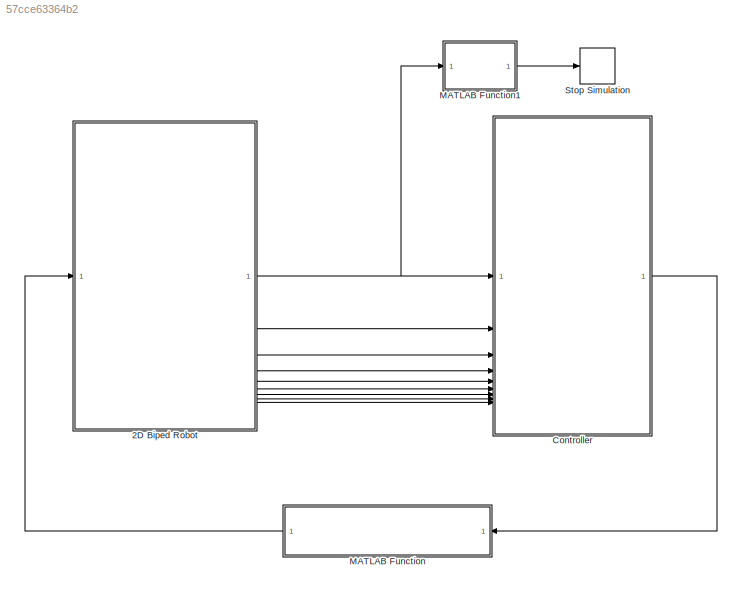
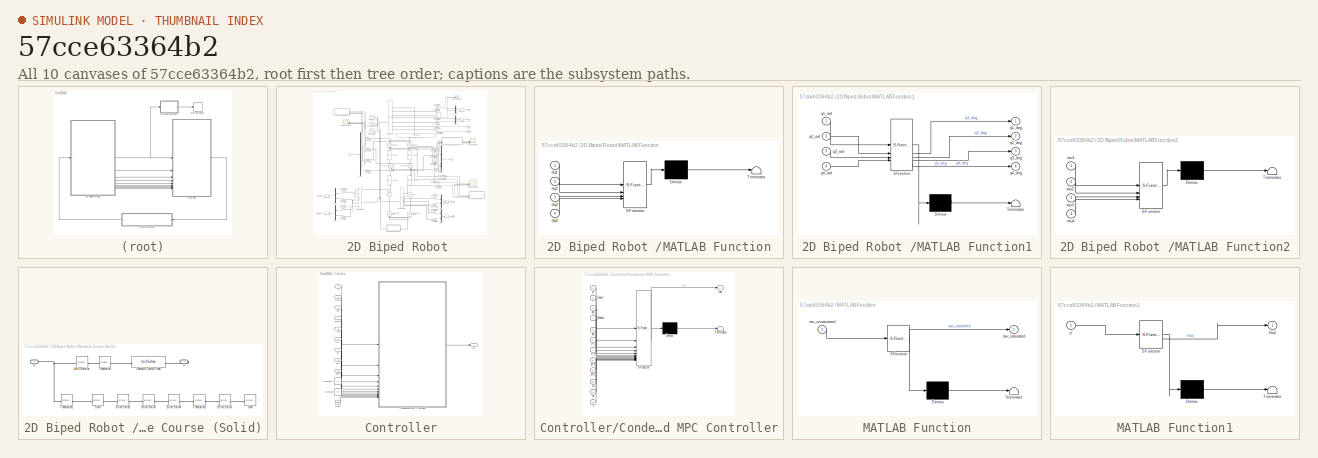
[diagram: thumbnail index - all 10 canvases of the model, root first then tree order]
MODEL slx_57cce63364b2
KIND model
CONFIG AbsTol = auto
CONFIG EnableMultiTasking = off
CONFIG FixedStep = 0.0005
CONFIG InitFcn = global params;\n\n% Mass and geometry\nparams.m = 0.25;\nparams.l = 0.22;\nparams.mb = 8;\nparams.a = 0.25;\nparams.b = 0.15;\nparams.g = [0; 9.81; 0];\n\n% Moment of inerita\nIl_zz = params.m * params.l^2 / 12;\nIb_xx = params.mb * params.a^2 / 12;\nIb_yy = params.mb * params.b^2 / 12;\nIb_zz = params.mb * (params.a^2 + params.b^2) / 12;\nparams.Ib = diag([Ib_xx Ib_yy Ib_zz]);\n\n% Spatial contact force parameter...<+337ch>
CONFIG MaxStep = 1e-3
CONFIG MinStep = auto
CONFIG RelTol = 1e-2
CONFIG SampleTimeConstraint = Unconstrained
CONFIG SolverName = daessc
CONFIG StartTime = 0.0
CONFIG StopTime = 10
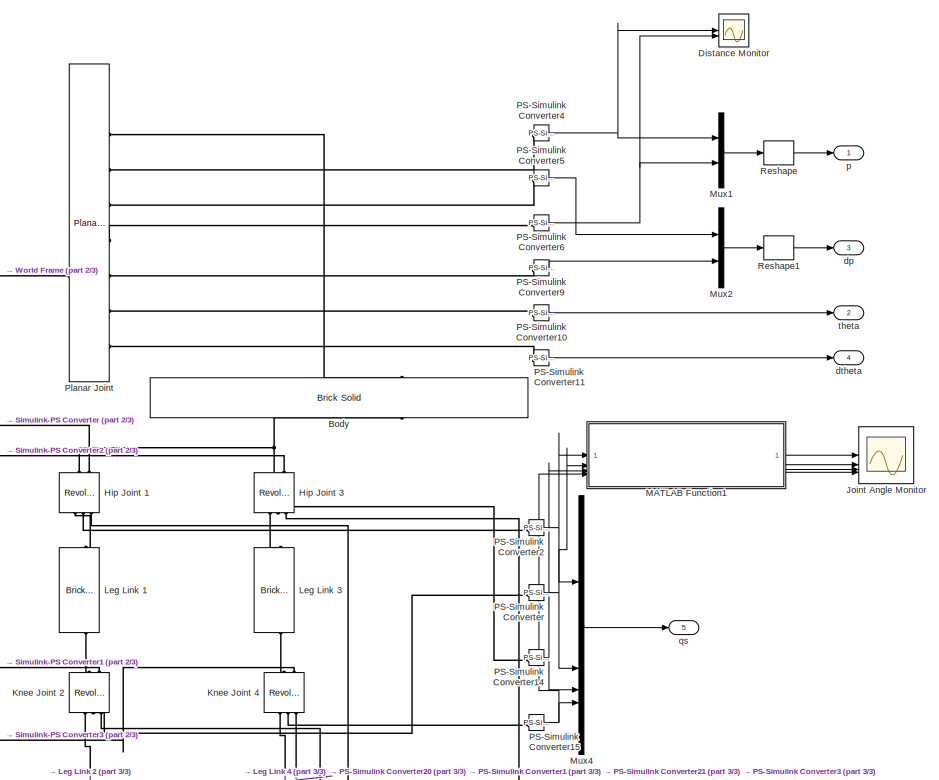
[diagram: 2D Biped Robot  - part 1/3, top right region]
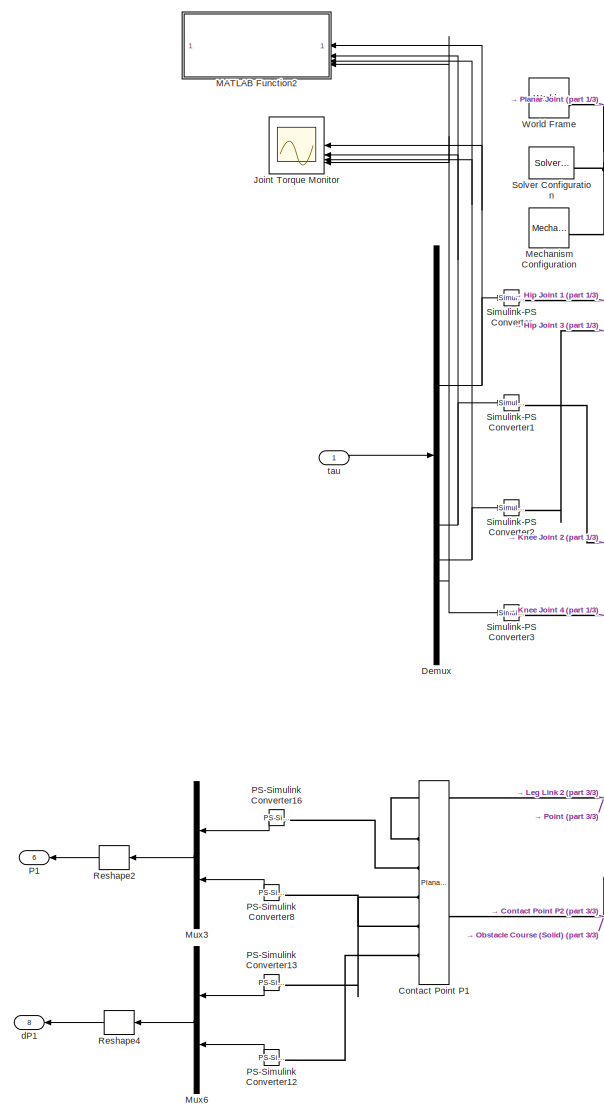
[diagram: 2D Biped Robot  - part 2/3, left side, full height]
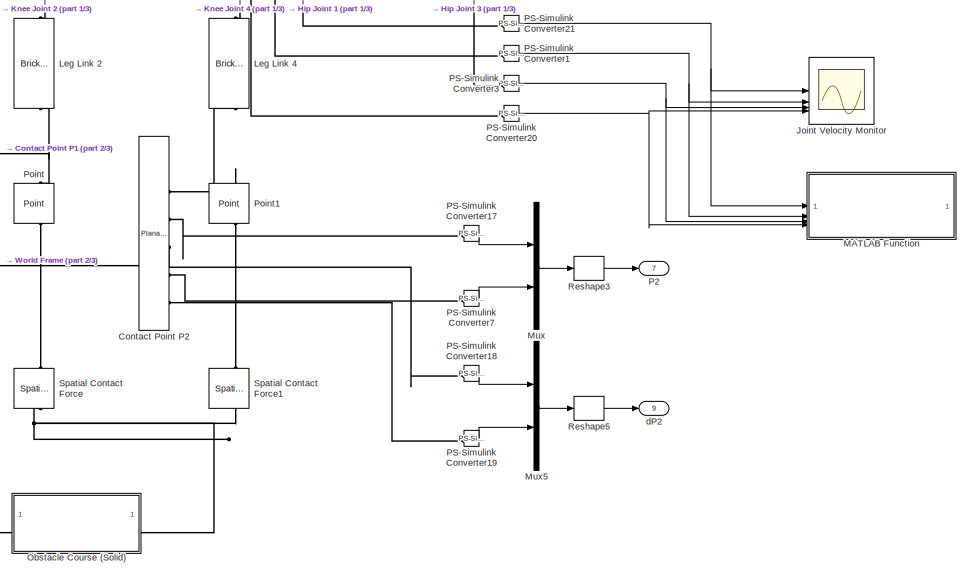
[diagram: 2D Biped Robot  - part 3/3, bottom right region]
BLOCK [SubSystem] 2D Biped Robot 
BLOCK [Reference] 2D Biped Robot /Body  REF=sm_lib/Body Elements/Brick Solid
  NameLocation = right
  SourceBlock = sm_lib/Body Elements/Brick Solid
  SourceType = Brick Solid
BLOCK [Reference] 2D Biped Robot /Contact Point P1  REF=sm_lib/Joints/Planar Joint
  NameLocation = top
  SourceBlock = sm_lib/Joints/Planar Joint
  SourceType = Planar Joint
BLOCK [Reference] 2D Biped Robot /Contact Point P2  REF=sm_lib/Joints/Planar Joint
  SourceBlock = sm_lib/Joints/Planar Joint
  SourceType = Planar Joint
BLOCK [Demux] 2D Biped Robot /Demux
BLOCK [Scope] 2D Biped Robot /Distance Monitor
  Floating = off
  NumInputPorts = 2
  ScopeSpecificationString = Simulink.scopes.TimeScopeBlockCfg('CurrentConfiguration', extmgr.ConfigurationSet(extmgr.Configuration('Core','General UI',true),extmgr.Configuration('Core','Source UI',true),extmgr.Configuration('Sources','WiredSimulink',true,'DataLoggingVariableName','ScopeData1'),extmgr.Configuration('Visuals','Time Domain',true,'SerializedDisplays',{struct('MinYLimReal','0','MaxYLimReal','8','YLabelReal','x (m...<+2418ch>
BLOCK [Reference] 2D Biped Robot /Hip Joint 1  REF=sm_lib/Joints/Revolute Joint
  NameLocation = left
  SourceBlock = sm_lib/Joints/Revolute Joint
  SourceType = Revolute Joint
BLOCK [Reference] 2D Biped Robot /Hip Joint 3  REF=sm_lib/Joints/Revolute Joint
  NameLocation = left
  SourceBlock = sm_lib/Joints/Revolute Joint
  SourceType = Revolute Joint
BLOCK [Scope] 2D Biped Robot /Joint Angle Monitor
  Floating = off
  NumInputPorts = 4
  ScopeSpecificationString = Simulink.scopes.TimeScopeBlockCfg('CurrentConfiguration', extmgr.ConfigurationSet(extmgr.Configuration('Core','General UI',true),extmgr.Configuration('Core','Source UI',true),extmgr.Configuration('Sources','WiredSimulink',true,'DataLoggingVariableName','ScopeData2'),extmgr.Configuration('Visuals','Time Domain',true,'SerializedDisplays',{struct('MinYLimReal','-120','MaxYLimReal','30','YLabelReal','...<+4352ch>
BLOCK [Scope] 2D Biped Robot /Joint Torque Monitor
  Floating = off
  NameLocation = top
  NumInputPorts = 4
  ScopeSpecificationString = Simulink.scopes.TimeScopeBlockCfg('CurrentConfiguration', extmgr.ConfigurationSet(extmgr.Configuration('Core','General UI',true),extmgr.Configuration('Core','Source UI',true),extmgr.Configuration('Sources','WiredSimulink',true,'DataLoggingVariableName','ScopeData4'),extmgr.Configuration('Visuals','Time Domain',true,'SerializedDisplays',{struct('MinYLimReal','-30','MaxYLimReal','30','YLabelReal','T...<+4228ch>
BLOCK [Scope] 2D Biped Robot /Joint Velocity Monitor
  Floating = off
  NumInputPorts = 4
  ScopeSpecificationString = Simulink.scopes.TimeScopeBlockCfg('CurrentConfiguration', extmgr.ConfigurationSet(extmgr.Configuration('Core','General UI',true),extmgr.Configuration('Core','Source UI',true),extmgr.Configuration('Sources','WiredSimulink',true,'DataLoggingVariableName','ScopeData3'),extmgr.Configuration('Visuals','Time Domain',true,'SerializedDisplays',{struct('MinYLimReal','-30','MaxYLimReal','30','YLabelReal','J...<+4213ch>
BLOCK [Reference] 2D Biped Robot /Knee Joint 2  REF=sm_lib/Joints/Revolute Joint
  NameLocation = left
  SourceBlock = sm_lib/Joints/Revolute Joint
  SourceType = Revolute Joint
BLOCK [Reference] 2D Biped Robot /Knee Joint 4  REF=sm_lib/Joints/Revolute Joint
  NameLocation = left
  SourceBlock = sm_lib/Joints/Revolute Joint
  SourceType = Revolute Joint
BLOCK [Reference] 2D Biped Robot /Leg Link 1  REF=sm_lib/Body Elements/Brick Solid
  NameLocation = left
  SourceBlock = sm_lib/Body Elements/Brick Solid
  SourceType = Brick Solid
BLOCK [Reference] 2D Biped Robot /Leg Link 2  REF=sm_lib/Body Elements/Brick Solid
  NameLocation = left
  SourceBlock = sm_lib/Body Elements/Brick Solid
  SourceType = Brick Solid
BLOCK [Reference] 2D Biped Robot /Leg Link 3  REF=sm_lib/Body Elements/Brick Solid
  NameLocation = left
  SourceBlock = sm_lib/Body Elements/Brick Solid
  SourceType = Brick Solid
BLOCK [Reference] 2D Biped Robot /Leg Link 4  REF=sm_lib/Body Elements/Brick Solid
  NameLocation = left
  SourceBlock = sm_lib/Body Elements/Brick Solid
  SourceType = Brick Solid
BLOCK [SubSystem] 2D Biped Robot /MATLAB Function
  ErrorFcn = Stateflow.Translate.translate
  PermitHierarchicalResolution = ExplicitOnly
  SFBlockType = MATLAB Function
  TreatAsAtomicUnit = on
BLOCK [Demux] 2D Biped Robot /MATLAB Function/ Demux 
  Outputs = 1
BLOCK [S-Function] 2D Biped Robot /MATLAB Function/ SFunction 
  EnableBusSupport = on
  FunctionName = sf_sfun
  PortCounts = [4 1]
  SFcnIsStateOwnerBlock = off
  SFunctionDeploymentMode = off
  Tag = Stateflow S-Function 6
BLOCK [Terminator] 2D Biped Robot /MATLAB Function/ Terminator 
BLOCK [Inport] 2D Biped Robot /MATLAB Function/dq1
BLOCK [Inport] 2D Biped Robot /MATLAB Function/dq2
  Port = 2
BLOCK [Inport] 2D Biped Robot /MATLAB Function/dq3
  Port = 3
BLOCK [Inport] 2D Biped Robot /MATLAB Function/dq4
  Port = 4
BLOCK [SubSystem] 2D Biped Robot /MATLAB Function1
  ErrorFcn = Stateflow.Translate.translate
  PermitHierarchicalResolution = ExplicitOnly
  SFBlockType = MATLAB Function
  TreatAsAtomicUnit = on
BLOCK [Demux] 2D Biped Robot /MATLAB Function1/ Demux 
  Outputs = 1
BLOCK [S-Function] 2D Biped Robot /MATLAB Function1/ SFunction 
  EnableBusSupport = on
  FunctionName = sf_sfun
  PortCounts = [4 5]
  SFcnIsStateOwnerBlock = off
  SFunctionDeploymentMode = off
  Tag = Stateflow S-Function 5
BLOCK [Terminator] 2D Biped Robot /MATLAB Function1/ Terminator 
BLOCK [Outport] 2D Biped Robot /MATLAB Function1/q1_deg
BLOCK [Inport] 2D Biped Robot /MATLAB Function1/q1_rad
BLOCK [Outport] 2D Biped Robot /MATLAB Function1/q2_deg
  Port = 2
BLOCK [Inport] 2D Biped Robot /MATLAB Function1/q2_rad
  Port = 2
BLOCK [Outport] 2D Biped Robot /MATLAB Function1/q3_deg
  Port = 3
BLOCK [Inport] 2D Biped Robot /MATLAB Function1/q3_rad
  Port = 3
BLOCK [Outport] 2D Biped Robot /MATLAB Function1/q4_deg
  Port = 4
BLOCK [Inport] 2D Biped Robot /MATLAB Function1/q4_rad
  Port = 4
BLOCK [SubSystem] 2D Biped Robot /MATLAB Function2
  ErrorFcn = Stateflow.Translate.translate
  NameLocation = top
  PermitHierarchicalResolution = ExplicitOnly
  SFBlockType = MATLAB Function
  TreatAsAtomicUnit = on
BLOCK [Demux] 2D Biped Robot /MATLAB Function2/ Demux 
  Outputs = 1
BLOCK [S-Function] 2D Biped Robot /MATLAB Function2/ SFunction 
  EnableBusSupport = on
  FunctionName = sf_sfun
  PortCounts = [4 1]
  SFcnIsStateOwnerBlock = off
  SFunctionDeploymentMode = off
  Tag = Stateflow S-Function 7
BLOCK [Terminator] 2D Biped Robot /MATLAB Function2/ Terminator 
BLOCK [Inport] 2D Biped Robot /MATLAB Function2/tau1
BLOCK [Inport] 2D Biped Robot /MATLAB Function2/tau2
  Port = 2
BLOCK [Inport] 2D Biped Robot /MATLAB Function2/tau3
  Port = 3
BLOCK [Inport] 2D Biped Robot /MATLAB Function2/tau4
  Port = 4
BLOCK [Reference] 2D Biped Robot /Mechanism Configuration  REF=sm_lib/Utilities/Mechanism
Configuration
  SourceBlock = sm_lib/Utilities/Mechanism\nConfiguration
  SourceType = Mechanism\nConfiguration
BLOCK [Mux] 2D Biped Robot /Mux
  DisplayOption = bar
  Inputs = 2
BLOCK [Mux] 2D Biped Robot /Mux1
  DisplayOption = bar
  Inputs = 2
BLOCK [Mux] 2D Biped Robot /Mux2
  DisplayOption = bar
  Inputs = 2
BLOCK [Mux] 2D Biped Robot /Mux3
  DisplayOption = bar
  Inputs = 2
  NameLocation = top
BLOCK [Mux] 2D Biped Robot /Mux4
  DisplayOption = bar
BLOCK [Mux] 2D Biped Robot /Mux5
  DisplayOption = bar
  Inputs = 2
BLOCK [Mux] 2D Biped Robot /Mux6
  DisplayOption = bar
  Inputs = 2
  NameLocation = top
BLOCK [SubSystem] 2D Biped Robot /Obstacle Course (Solid)
BLOCK [Reference] 2D Biped Robot /Obstacle Course (Solid)/Axis Rotation  REF=sm_lib/Frames and
Transforms/Rigid
Transform
  SourceBlock = sm_lib/Frames and\nTransforms/Rigid\nTransform
  SourceType = Rigid\nTransform
BLOCK [PMIOPort] 2D Biped Robot /Obstacle Course (Solid)/B
  Side = Left
BLOCK [Reference] 2D Biped Robot /Obstacle Course (Solid)/Brick Solid2  REF=sm_lib/Body Elements/Brick Solid
  SourceBlock = sm_lib/Body Elements/Brick Solid
  SourceType = Brick Solid
BLOCK [Reference] 2D Biped Robot /Obstacle Course (Solid)/Brick Solid3  REF=sm_lib/Body Elements/Brick Solid
  SourceBlock = sm_lib/Body Elements/Brick Solid
  SourceType = Brick Solid
BLOCK [Reference] 2D Biped Robot /Obstacle Course (Solid)/Brick Solid4  REF=sm_lib/Body Elements/Brick Solid
  SourceBlock = sm_lib/Body Elements/Brick Solid
  SourceType = Brick Solid
BLOCK [Reference] 2D Biped Robot /Obstacle Course (Solid)/Brick Solid5  REF=sm_lib/Body Elements/Brick Solid
  SourceBlock = sm_lib/Body Elements/Brick Solid
  SourceType = Brick Solid
BLOCK [PMIOPort] 2D Biped Robot /Obstacle Course (Solid)/G
  NameLocation = top
  Port = 2
  Side = Right
BLOCK [Reference] 2D Biped Robot /Obstacle Course (Solid)/Goal  REF=sm_lib/Body Elements/Brick Solid
  SourceBlock = sm_lib/Body Elements/Brick Solid
  SourceType = Brick Solid
BLOCK [Reference] 2D Biped Robot /Obstacle Course (Solid)/Obstacle Course Plane  REF=sm_lib/Curves and Surfaces/Grid Surface
  SourceBlock = sm_lib/Curves and Surfaces/Grid Surface
  SourceType = Grid Surface
BLOCK [Reference] 2D Biped Robot /Obstacle Course (Solid)/Start  REF=sm_lib/Body Elements/Brick Solid
  SourceBlock = sm_lib/Body Elements/Brick Solid
  SourceType = Brick Solid
BLOCK [Reference] 2D Biped Robot /Obstacle Course (Solid)/Translation  REF=sm_lib/Frames and
Transforms/Rigid
Transform
  SourceBlock = sm_lib/Frames and\nTransforms/Rigid\nTransform
  SourceType = Rigid\nTransform
BLOCK [Reference] 2D Biped Robot /Obstacle Course (Solid)/Translation1  REF=sm_lib/Frames and
Transforms/Rigid
Transform
  SourceBlock = sm_lib/Frames and\nTransforms/Rigid\nTransform
  SourceType = Rigid\nTransform
BLOCK [Reference] 2D Biped Robot /Obstacle Course (Solid)/Translation2  REF=sm_lib/Frames and
Transforms/Rigid
Transform
  SourceBlock = sm_lib/Frames and\nTransforms/Rigid\nTransform
  SourceType = Rigid\nTransform
BLOCK [Outport] 2D Biped Robot /P1
  NameLocation = top
  Port = 6
BLOCK [Outport] 2D Biped Robot /P2
  Port = 7
BLOCK [Reference] 2D Biped Robot /PS-Simulink Converter  REF=nesl_utility/PS-Simulink
Converter
  SourceBlock = nesl_utility/PS-Simulink\nConverter
  SourceType = PS-Simulink\nConverter
BLOCK [Reference] 2D Biped Robot /PS-Simulink Converter1  REF=nesl_utility/PS-Simulink
Converter
  SourceBlock = nesl_utility/PS-Simulink\nConverter
  SourceType = PS-Simulink\nConverter
BLOCK [Reference] 2D Biped Robot /PS-Simulink Converter10  REF=nesl_utility/PS-Simulink
Converter
  SourceBlock = nesl_utility/PS-Simulink\nConverter
  SourceType = PS-Simulink\nConverter
BLOCK [Reference] 2D Biped Robot /PS-Simulink Converter11  REF=nesl_utility/PS-Simulink
Converter
  SourceBlock = nesl_utility/PS-Simulink\nConverter
  SourceType = PS-Simulink\nConverter
BLOCK [Reference] 2D Biped Robot /PS-Simulink Converter12  REF=nesl_utility/PS-Simulink
Converter
  NameLocation = top
  SourceBlock = nesl_utility/PS-Simulink\nConverter
  SourceType = PS-Simulink\nConverter
BLOCK [Reference] 2D Biped Robot /PS-Simulink Converter13  REF=nesl_utility/PS-Simulink
Converter
  NameLocation = top
  SourceBlock = nesl_utility/PS-Simulink\nConverter
  SourceType = PS-Simulink\nConverter
BLOCK [Reference] 2D Biped Robot /PS-Simulink Converter14  REF=nesl_utility/PS-Simulink
Converter
  SourceBlock = nesl_utility/PS-Simulink\nConverter
  SourceType = PS-Simulink\nConverter
BLOCK [Reference] 2D Biped Robot /PS-Simulink Converter15  REF=nesl_utility/PS-Simulink
Converter
  SourceBlock = nesl_utility/PS-Simulink\nConverter
  SourceType = PS-Simulink\nConverter
BLOCK [Reference] 2D Biped Robot /PS-Simulink Converter16  REF=nesl_utility/PS-Simulink
Converter
  NameLocation = top
  SourceBlock = nesl_utility/PS-Simulink\nConverter
  SourceType = PS-Simulink\nConverter
BLOCK [Reference] 2D Biped Robot /PS-Simulink Converter17  REF=nesl_utility/PS-Simulink
Converter
  SourceBlock = nesl_utility/PS-Simulink\nConverter
  SourceType = PS-Simulink\nConverter
BLOCK [Reference] 2D Biped Robot /PS-Simulink Converter18  REF=nesl_utility/PS-Simulink
Converter
  SourceBlock = nesl_utility/PS-Simulink\nConverter
  SourceType = PS-Simulink\nConverter
BLOCK [Reference] 2D Biped Robot /PS-Simulink Converter19  REF=nesl_utility/PS-Simulink
Converter
  SourceBlock = nesl_utility/PS-Simulink\nConverter
  SourceType = PS-Simulink\nConverter
BLOCK [Reference] 2D Biped Robot /PS-Simulink Converter2  REF=nesl_utility/PS-Simulink
Converter
  SourceBlock = nesl_utility/PS-Simulink\nConverter
  SourceType = PS-Simulink\nConverter
BLOCK [Reference] 2D Biped Robot /PS-Simulink Converter20  REF=nesl_utility/PS-Simulink
Converter
  SourceBlock = nesl_utility/PS-Simulink\nConverter
  SourceType = PS-Simulink\nConverter
BLOCK [Reference] 2D Biped Robot /PS-Simulink Converter21  REF=nesl_utility/PS-Simulink
Converter
  SourceBlock = nesl_utility/PS-Simulink\nConverter
  SourceType = PS-Simulink\nConverter
BLOCK [Reference] 2D Biped Robot /PS-Simulink Converter3  REF=nesl_utility/PS-Simulink
Converter
  SourceBlock = nesl_utility/PS-Simulink\nConverter
  SourceType = PS-Simulink\nConverter
BLOCK [Reference] 2D Biped Robot /PS-Simulink Converter4  REF=nesl_utility/PS-Simulink
Converter
  SourceBlock = nesl_utility/PS-Simulink\nConverter
  SourceType = PS-Simulink\nConverter
BLOCK [Reference] 2D Biped Robot /PS-Simulink Converter5  REF=nesl_utility/PS-Simulink
Converter
  SourceBlock = nesl_utility/PS-Simulink\nConverter
  SourceType = PS-Simulink\nConverter
BLOCK [Reference] 2D Biped Robot /PS-Simulink Converter6  REF=nesl_utility/PS-Simulink
Converter
  SourceBlock = nesl_utility/PS-Simulink\nConverter
  SourceType = PS-Simulink\nConverter
BLOCK [Reference] 2D Biped Robot /PS-Simulink Converter7  REF=nesl_utility/PS-Simulink
Converter
  SourceBlock = nesl_utility/PS-Simulink\nConverter
  SourceType = PS-Simulink\nConverter
BLOCK [Reference] 2D Biped Robot /PS-Simulink Converter8  REF=nesl_utility/PS-Simulink
Converter
  NameLocation = top
  SourceBlock = nesl_utility/PS-Simulink\nConverter
  SourceType = PS-Simulink\nConverter
BLOCK [Reference] 2D Biped Robot /PS-Simulink Converter9  REF=nesl_utility/PS-Simulink
Converter
  SourceBlock = nesl_utility/PS-Simulink\nConverter
  SourceType = PS-Simulink\nConverter
BLOCK [Reference] 2D Biped Robot /Planar Joint  REF=sm_lib/Joints/Planar Joint
  SourceBlock = sm_lib/Joints/Planar Joint
  SourceType = Planar Joint
BLOCK [Reference] 2D Biped Robot /Point  REF=sm_lib/Curves and Surfaces/Point
  NameLocation = left
  SourceBlock = sm_lib/Curves and Surfaces/Point
  SourceType = Point
BLOCK [Reference] 2D Biped Robot /Point1  REF=sm_lib/Curves and Surfaces/Point
  NameLocation = left
  SourceBlock = sm_lib/Curves and Surfaces/Point
  SourceType = Point
BLOCK [Reshape] 2D Biped Robot /Reshape
  OutputDimensionality = Customize
  OutputDimensions = [2,1]
BLOCK [Reshape] 2D Biped Robot /Reshape1
  OutputDimensionality = Customize
  OutputDimensions = [2,1]
BLOCK [Reshape] 2D Biped Robot /Reshape2
  NameLocation = top
  OutputDimensionality = Customize
  OutputDimensions = [2,1]
BLOCK [Reshape] 2D Biped Robot /Reshape3
  OutputDimensionality = Customize
  OutputDimensions = [2,1]
BLOCK [Reshape] 2D Biped Robot /Reshape4
  NameLocation = top
  OutputDimensionality = Customize
  OutputDimensions = [2,1]
BLOCK [Reshape] 2D Biped Robot /Reshape5
  OutputDimensionality = Customize
  OutputDimensions = [2,1]
BLOCK [Reference] 2D Biped Robot /Simulink-PS Converter  REF=nesl_utility/Simulink-PS
Converter
  SourceBlock = nesl_utility/Simulink-PS\nConverter
  SourceType = Simulink-PS\nConverter
BLOCK [Reference] 2D Biped Robot /Simulink-PS Converter1  REF=nesl_utility/Simulink-PS
Converter
  SourceBlock = nesl_utility/Simulink-PS\nConverter
  SourceType = Simulink-PS\nConverter
BLOCK [Reference] 2D Biped Robot /Simulink-PS Converter2  REF=nesl_utility/Simulink-PS
Converter
  SourceBlock = nesl_utility/Simulink-PS\nConverter
  SourceType = Simulink-PS\nConverter
BLOCK [Reference] 2D Biped Robot /Simulink-PS Converter3  REF=nesl_utility/Simulink-PS
Converter
  SourceBlock = nesl_utility/Simulink-PS\nConverter
  SourceType = Simulink-PS\nConverter
BLOCK [Reference] 2D Biped Robot /Solver Configuration  REF=nesl_utility/Solver
Configuration
  SourceBlock = nesl_utility/Solver\nConfiguration
  SourceType = Solver\nConfiguration
BLOCK [Reference] 2D Biped Robot /Spatial Contact Force  REF=sm_lib/Forces and
Torques/Spatial
Contact Force
  NameLocation = right
  SourceBlock = sm_lib/Forces and\nTorques/Spatial\nContact Force
  SourceType = Spatial\nContact Force
BLOCK [Reference] 2D Biped Robot /Spatial Contact Force1  REF=sm_lib/Forces and
Torques/Spatial
Contact Force
  NameLocation = right
  SourceBlock = sm_lib/Forces and\nTorques/Spatial\nContact Force
  SourceType = Spatial\nContact Force
BLOCK [Reference] 2D Biped Robot /World Frame  REF=sm_lib/Frames and
Transforms/World Frame
  SourceBlock = sm_lib/Frames and\nTransforms/World Frame
  SourceType = World Frame
BLOCK [Outport] 2D Biped Robot /dP1
  NameLocation = top
  Port = 8
BLOCK [Outport] 2D Biped Robot /dP2
  Port = 9
BLOCK [Outport] 2D Biped Robot /dp
  Port = 3
BLOCK [Outport] 2D Biped Robot /dtheta
  Port = 4
BLOCK [Outport] 2D Biped Robot /p
BLOCK [Outport] 2D Biped Robot /qs
  Port = 5
BLOCK [Inport] 2D Biped Robot /tau
BLOCK [Outport] 2D Biped Robot /theta
  Port = 2
BLOCK [SubSystem] Controller
BLOCK [Clock] Controller/Clock
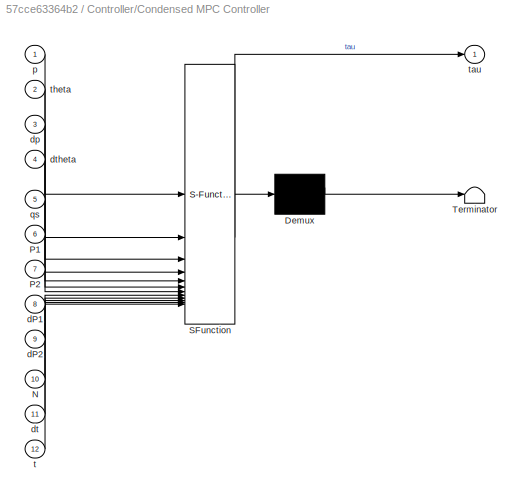
BLOCK [SubSystem] Controller/Condensed MPC Controller
  ErrorFcn = Stateflow.Translate.translate
  PermitHierarchicalResolution = ExplicitOnly
  SFBlockType = MATLAB Function
  TreatAsAtomicUnit = on
BLOCK [Demux] Controller/Condensed MPC Controller/ Demux 
  Outputs = 1
BLOCK [S-Function] Controller/Condensed MPC Controller/ SFunction 
  EnableBusSupport = on
  FunctionName = sf_sfun
  PortCounts = [12 2]
  SFcnIsStateOwnerBlock = off
  SFunctionDeploymentMode = off
  Tag = Stateflow S-Function 3
BLOCK [Terminator] Controller/Condensed MPC Controller/ Terminator 
BLOCK [Inport] Controller/Condensed MPC Controller/N
  Port = 10
BLOCK [Inport] Controller/Condensed MPC Controller/P1
  Port = 6
BLOCK [Inport] Controller/Condensed MPC Controller/P2
  Port = 7
BLOCK [Inport] Controller/Condensed MPC Controller/dP1
  Port = 8
BLOCK [Inport] Controller/Condensed MPC Controller/dP2
  Port = 9
BLOCK [Inport] Controller/Condensed MPC Controller/dp
  Port = 3
BLOCK [Inport] Controller/Condensed MPC Controller/dt
  Port = 11
BLOCK [Inport] Controller/Condensed MPC Controller/dtheta
  Port = 4
BLOCK [Inport] Controller/Condensed MPC Controller/p
BLOCK [Inport] Controller/Condensed MPC Controller/qs
  Port = 5
BLOCK [Inport] Controller/Condensed MPC Controller/t
  Port = 12
BLOCK [Outport] Controller/Condensed MPC Controller/tau
BLOCK [Inport] Controller/Condensed MPC Controller/theta
  Port = 2
BLOCK [Constant] Controller/Constant
  Value = dt
BLOCK [Constant] Controller/Constant1
  Value = N
BLOCK [Inport] Controller/P1
  Port = 6
BLOCK [Inport] Controller/P2
  Port = 7
BLOCK [Inport] Controller/dP1
  Port = 8
BLOCK [Inport] Controller/dP2
  Port = 9
BLOCK [Inport] Controller/dp
  Port = 3
BLOCK [Inport] Controller/dtheta
  Port = 4
BLOCK [Inport] Controller/p
BLOCK [Inport] Controller/qs
  Port = 5
BLOCK [Outport] Controller/tau
BLOCK [Inport] Controller/theta
  Port = 2
BLOCK [SubSystem] MATLAB Function
  ErrorFcn = Stateflow.Translate.translate
  NameLocation = top
  PermitHierarchicalResolution = ExplicitOnly
  SFBlockType = MATLAB Function
  TreatAsAtomicUnit = on
BLOCK [Demux] MATLAB Function/ Demux 
  Outputs = 1
BLOCK [S-Function] MATLAB Function/ SFunction 
  EnableBusSupport = on
  FunctionName = sf_sfun
  PortCounts = [1 2]
  SFcnIsStateOwnerBlock = off
  SFunctionDeploymentMode = off
  Tag = Stateflow S-Function 1
BLOCK [Terminator] MATLAB Function/ Terminator 
BLOCK [Outport] MATLAB Function/tau_saturated
BLOCK [Inport] MATLAB Function/tau_unsaturated
BLOCK [SubSystem] MATLAB Function1
  ErrorFcn = Stateflow.Translate.translate
  PermitHierarchicalResolution = ExplicitOnly
  SFBlockType = MATLAB Function
  TreatAsAtomicUnit = on
BLOCK [Demux] MATLAB Function1/ Demux 
  Outputs = 1
BLOCK [S-Function] MATLAB Function1/ SFunction 
  EnableBusSupport = on
  FunctionName = sf_sfun
  PortCounts = [1 2]
  SFcnIsStateOwnerBlock = off
  SFunctionDeploymentMode = off
  Tag = Stateflow S-Function 2
BLOCK [Terminator] MATLAB Function1/ Terminator 
BLOCK [Inport] MATLAB Function1/p
BLOCK [Outport] MATLAB Function1/stop
BLOCK [Stop] Stop Simulation
NET 2D Biped Robot /Demux:1 -> 2D Biped Robot /Joint Torque Monitor:1, 2D Biped Robot /MATLAB Function2:1, 2D Biped Robot /Simulink-PS Converter:1
NET 2D Biped Robot /Demux:2 -> 2D Biped Robot /Joint Torque Monitor:2, 2D Biped Robot /MATLAB Function2:2, 2D Biped Robot /Simulink-PS Converter1:1
NET 2D Biped Robot /Demux:3 -> 2D Biped Robot /Joint Torque Monitor:3, 2D Biped Robot /MATLAB Function2:3, 2D Biped Robot /Simulink-PS Converter2:1
NET 2D Biped Robot /Demux:4 -> 2D Biped Robot /Joint Torque Monitor:4, 2D Biped Robot /MATLAB Function2:4, 2D Biped Robot /Simulink-PS Converter3:1
LINE 2D Biped Robot /MATLAB Function1:1 -> 2D Biped Robot /Joint Angle Monitor:1
LINE 2D Biped Robot /MATLAB Function1:2 -> 2D Biped Robot /Joint Angle Monitor:2
LINE 2D Biped Robot /MATLAB Function1:3 -> 2D Biped Robot /Joint Angle Monitor:3
LINE 2D Biped Robot /MATLAB Function1:4 -> 2D Biped Robot /Joint Angle Monitor:4
LINE 2D Biped Robot /Mux1:1 -> 2D Biped Robot /Reshape:1
LINE 2D Biped Robot /Mux2:1 -> 2D Biped Robot /Reshape1:1
LINE 2D Biped Robot /Mux3:1 -> 2D Biped Robot /Reshape2:1
LINE 2D Biped Robot /Mux4:1 -> 2D Biped Robot /qs:1
LINE 2D Biped Robot /Mux5:1 -> 2D Biped Robot /Reshape5:1
LINE 2D Biped Robot /Mux6:1 -> 2D Biped Robot /Reshape4:1
LINE 2D Biped Robot /Mux:1 -> 2D Biped Robot /Reshape3:1
LINE 2D Biped Robot /PS-Simulink Converter10:1 -> 2D Biped Robot /theta:1
LINE 2D Biped Robot /PS-Simulink Converter11:1 -> 2D Biped Robot /dtheta:1
LINE 2D Biped Robot /PS-Simulink Converter12:1 -> 2D Biped Robot /Mux6:2
LINE 2D Biped Robot /PS-Simulink Converter13:1 -> 2D Biped Robot /Mux6:1
NET 2D Biped Robot /PS-Simulink Converter14:1 -> 2D Biped Robot /MATLAB Function1:3, 2D Biped Robot /Mux4:3
NET 2D Biped Robot /PS-Simulink Converter15:1 -> 2D Biped Robot /MATLAB Function1:4, 2D Biped Robot /Mux4:4
LINE 2D Biped Robot /PS-Simulink Converter16:1 -> 2D Biped Robot /Mux3:1
LINE 2D Biped Robot /PS-Simulink Converter17:1 -> 2D Biped Robot /Mux:1
LINE 2D Biped Robot /PS-Simulink Converter18:1 -> 2D Biped Robot /Mux5:1
LINE 2D Biped Robot /PS-Simulink Converter19:1 -> 2D Biped Robot /Mux5:2
NET 2D Biped Robot /PS-Simulink Converter1:1 -> 2D Biped Robot /Joint Velocity Monitor:2, 2D Biped Robot /MATLAB Function:2
NET 2D Biped Robot /PS-Simulink Converter20:1 -> 2D Biped Robot /Joint Velocity Monitor:4, 2D Biped Robot /MATLAB Function:4
NET 2D Biped Robot /PS-Simulink Converter21:1 -> 2D Biped Robot /Joint Velocity Monitor:1, 2D Biped Robot /MATLAB Function:1
NET 2D Biped Robot /PS-Simulink Converter2:1 -> 2D Biped Robot /MATLAB Function1:1, 2D Biped Robot /Mux4:1
NET 2D Biped Robot /PS-Simulink Converter3:1 -> 2D Biped Robot /Joint Velocity Monitor:3, 2D Biped Robot /MATLAB Function:3
NET 2D Biped Robot /PS-Simulink Converter4:1 -> 2D Biped Robot /Distance Monitor:1, 2D Biped Robot /Mux1:1
LINE 2D Biped Robot /PS-Simulink Converter5:1 -> 2D Biped Robot /Mux2:1
NET 2D Biped Robot /PS-Simulink Converter6:1 -> 2D Biped Robot /Distance Monitor:2, 2D Biped Robot /Mux1:2
LINE 2D Biped Robot /PS-Simulink Converter7:1 -> 2D Biped Robot /Mux:2
LINE 2D Biped Robot /PS-Simulink Converter8:1 -> 2D Biped Robot /Mux3:2
LINE 2D Biped Robot /PS-Simulink Converter9:1 -> 2D Biped Robot /Mux2:2
NET 2D Biped Robot /PS-Simulink Converter:1 -> 2D Biped Robot /MATLAB Function1:2, 2D Biped Robot /Mux4:2
LINE 2D Biped Robot /Reshape1:1 -> 2D Biped Robot /dp:1
LINE 2D Biped Robot /Reshape2:1 -> 2D Biped Robot /P1:1
LINE 2D Biped Robot /Reshape3:1 -> 2D Biped Robot /P2:1
LINE 2D Biped Robot /Reshape4:1 -> 2D Biped Robot /dP1:1
LINE 2D Biped Robot /Reshape5:1 -> 2D Biped Robot /dP2:1
LINE 2D Biped Robot /Reshape:1 -> 2D Biped Robot /p:1
LINE 2D Biped Robot /tau:1 -> 2D Biped Robot /Demux:1
NET 2D Biped Robot :1 -> Controller:1, MATLAB Function1:1
LINE 2D Biped Robot :2 -> Controller:2
LINE 2D Biped Robot :3 -> Controller:3
LINE 2D Biped Robot :4 -> Controller:4
LINE 2D Biped Robot :5 -> Controller:5
LINE 2D Biped Robot :6 -> Controller:6
LINE 2D Biped Robot :7 -> Controller:7
LINE 2D Biped Robot :8 -> Controller:8
LINE 2D Biped Robot :9 -> Controller:9
LINE Controller/Clock:1 -> Controller/Condensed MPC Controller:12
LINE Controller/Condensed MPC Controller:1 -> Controller/tau:1
LINE Controller/Constant1:1 -> Controller/Condensed MPC Controller:10
LINE Controller/Constant:1 -> Controller/Condensed MPC Controller:11
LINE Controller/P1:1 -> Controller/Condensed MPC Controller:6
LINE Controller/P2:1 -> Controller/Condensed MPC Controller:7
LINE Controller/dP1:1 -> Controller/Condensed MPC Controller:8
LINE Controller/dP2:1 -> Controller/Condensed MPC Controller:9
LINE Controller/dp:1 -> Controller/Condensed MPC Controller:3
LINE Controller/dtheta:1 -> Controller/Condensed MPC Controller:4
LINE Controller/p:1 -> Controller/Condensed MPC Controller:1
LINE Controller/qs:1 -> Controller/Condensed MPC Controller:5
LINE Controller/theta:1 -> Controller/Condensed MPC Controller:2
LINE Controller:1 -> MATLAB Function:1
LINE MATLAB Function1:1 -> Stop Simulation:1
LINE MATLAB Function:1 -> 2D Biped Robot :1
PNET net1: 2D Biped Robot /Body:LConn1 -- 2D Biped Robot /Hip Joint 1:LConn1 -- 2D Biped Robot /Hip Joint 3:LConn1
PLINE 2D Biped Robot /Body:RConn1 -- 2D Biped Robot /Planar Joint:RConn1
PNET net2: 2D Biped Robot /Contact Point P1:LConn1 -- 2D Biped Robot /Contact Point P2:LConn1 -- 2D Biped Robot /Mechanism Configuration:RConn1 -- 2D Biped Robot /Obstacle Course (Solid):LConn1 -- 2D Biped Robot /Planar Joint:LConn1 -- 2D Biped Robot /Solver Configuration:RConn1 -- 2D Biped Robot /World Frame:RConn1
PNET net3: 2D Biped Robot /Contact Point P1:RConn1 -- 2D Biped Robot /Leg Link 2:RConn1 -- 2D Biped Robot /Point:LConn1
PLINE 2D Biped Robot /Contact Point P1:RConn2 -- 2D Biped Robot /PS-Simulink Converter16:LConn1
PLINE 2D Biped Robot /Contact Point P1:RConn3 -- 2D Biped Robot /PS-Simulink Converter13:LConn1
PLINE 2D Biped Robot /Contact Point P1:RConn4 -- 2D Biped Robot /PS-Simulink Converter8:LConn1
PLINE 2D Biped Robot /Contact Point P1:RConn5 -- 2D Biped Robot /PS-Simulink Converter12:LConn1
PNET net4: 2D Biped Robot /Contact Point P2:RConn1 -- 2D Biped Robot /Leg Link 4:RConn1 -- 2D Biped Robot /Point1:LConn1
PLINE 2D Biped Robot /Contact Point P2:RConn2 -- 2D Biped Robot /PS-Simulink Converter17:LConn1
PLINE 2D Biped Robot /Contact Point P2:RConn3 -- 2D Biped Robot /PS-Simulink Converter18:LConn1
PLINE 2D Biped Robot /Contact Point P2:RConn4 -- 2D Biped Robot /PS-Simulink Converter7:LConn1
PLINE 2D Biped Robot /Contact Point P2:RConn5 -- 2D Biped Robot /PS-Simulink Converter19:LConn1
PLINE 2D Biped Robot /Hip Joint 1:LConn2 -- 2D Biped Robot /Simulink-PS Converter:RConn1
PLINE 2D Biped Robot /Hip Joint 1:RConn1 -- 2D Biped Robot /Leg Link 1:LConn1
PLINE 2D Biped Robot /Hip Joint 1:RConn2 -- 2D Biped Robot /PS-Simulink Converter2:LConn1
PLINE 2D Biped Robot /Hip Joint 1:RConn3 -- 2D Biped Robot /PS-Simulink Converter21:LConn1
PLINE 2D Biped Robot /Hip Joint 3:LConn2 -- 2D Biped Robot /Simulink-PS Converter2:RConn1
PLINE 2D Biped Robot /Hip Joint 3:RConn1 -- 2D Biped Robot /Leg Link 3:LConn1
PLINE 2D Biped Robot /Hip Joint 3:RConn2 -- 2D Biped Robot /PS-Simulink Converter14:LConn1
PLINE 2D Biped Robot /Hip Joint 3:RConn3 -- 2D Biped Robot /PS-Simulink Converter3:LConn1
PLINE 2D Biped Robot /Knee Joint 2:LConn1 -- 2D Biped Robot /Leg Link 1:RConn1
PLINE 2D Biped Robot /Knee Joint 2:LConn2 -- 2D Biped Robot /Simulink-PS Converter1:RConn1
PLINE 2D Biped Robot /Knee Joint 2:RConn1 -- 2D Biped Robot /Leg Link 2:LConn1
PLINE 2D Biped Robot /Knee Joint 2:RConn2 -- 2D Biped Robot /PS-Simulink Converter:LConn1
PLINE 2D Biped Robot /Knee Joint 2:RConn3 -- 2D Biped Robot /PS-Simulink Converter1:LConn1
PLINE 2D Biped Robot /Knee Joint 4:LConn1 -- 2D Biped Robot /Leg Link 3:RConn1
PLINE 2D Biped Robot /Knee Joint 4:LConn2 -- 2D Biped Robot /Simulink-PS Converter3:RConn1
PLINE 2D Biped Robot /Knee Joint 4:RConn1 -- 2D Biped Robot /Leg Link 4:LConn1
PLINE 2D Biped Robot /Knee Joint 4:RConn2 -- 2D Biped Robot /PS-Simulink Converter15:LConn1
PLINE 2D Biped Robot /Knee Joint 4:RConn3 -- 2D Biped Robot /PS-Simulink Converter20:LConn1
PNET net5: 2D Biped Robot /Obstacle Course (Solid)/Axis Rotation:LConn1 -- 2D Biped Robot /Obstacle Course (Solid)/B:RConn1 -- 2D Biped Robot /Obstacle Course (Solid)/Translation1:LConn1
PLINE 2D Biped Robot /Obstacle Course (Solid)/Axis Rotation:RConn1 -- 2D Biped Robot /Obstacle Course (Solid)/Translation:LConn1
PLINE 2D Biped Robot /Obstacle Course (Solid)/Brick Solid2:LConn1 -- 2D Biped Robot /Obstacle Course (Solid)/Start:RConn1
PLINE 2D Biped Robot /Obstacle Course (Solid)/Brick Solid2:RConn1 -- 2D Biped Robot /Obstacle Course (Solid)/Brick Solid3:LConn1
PLINE 2D Biped Robot /Obstacle Course (Solid)/Brick Solid3:RConn1 -- 2D Biped Robot /Obstacle Course (Solid)/Brick Solid4:LConn1
PLINE 2D Biped Robot /Obstacle Course (Solid)/Brick Solid4:RConn1 -- 2D Biped Robot /Obstacle Course (Solid)/Translation2:LConn1
PLINE 2D Biped Robot /Obstacle Course (Solid)/Brick Solid5:LConn1 -- 2D Biped Robot /Obstacle Course (Solid)/Translation2:RConn1
PLINE 2D Biped Robot /Obstacle Course (Solid)/Brick Solid5:RConn1 -- 2D Biped Robot /Obstacle Course (Solid)/Goal:LConn1
PLINE 2D Biped Robot /Obstacle Course (Solid)/G:RConn1 -- 2D Biped Robot /Obstacle Course (Solid)/Obstacle Course Plane:RConn1
PLINE 2D Biped Robot /Obstacle Course (Solid)/Obstacle Course Plane:LConn1 -- 2D Biped Robot /Obstacle Course (Solid)/Translation:RConn1
PLINE 2D Biped Robot /Obstacle Course (Solid)/Start:LConn1 -- 2D Biped Robot /Obstacle Course (Solid)/Translation1:RConn1
PNET net6: 2D Biped Robot /Obstacle Course (Solid):RConn1 -- 2D Biped Robot /Spatial Contact Force1:LConn1 -- 2D Biped Robot /Spatial Contact Force:LConn1
PLINE 2D Biped Robot /PS-Simulink Converter10:LConn1 -- 2D Biped Robot /Planar Joint:RConn6
PLINE 2D Biped Robot /PS-Simulink Converter11:LConn1 -- 2D Biped Robot /Planar Joint:RConn7
PLINE 2D Biped Robot /PS-Simulink Converter4:LConn1 -- 2D Biped Robot /Planar Joint:RConn2
PLINE 2D Biped Robot /PS-Simulink Converter5:LConn1 -- 2D Biped Robot /Planar Joint:RConn3
PLINE 2D Biped Robot /PS-Simulink Converter6:LConn1 -- 2D Biped Robot /Planar Joint:RConn4
PLINE 2D Biped Robot /PS-Simulink Converter9:LConn1 -- 2D Biped Robot /Planar Joint:RConn5
PLINE 2D Biped Robot /Point1:RConn1 -- 2D Biped Robot /Spatial Contact Force1:RConn1
PLINE 2D Biped Robot /Point:RConn1 -- 2D Biped Robot /Spatial Contact Force:RConn1
note: NET lines group one-source signal fan-out (src -> all destinations, sorted); 1:1 wires keep LINE; PNET lines group multi-terminal physical nets as a canonical sorted terminal list (undirected conserving connections); 2-terminal nets keep the pairwise PLINE form
CHART MATLAB Function states=1 transitions=1
  STATE_LABEL 'eML_blk_kernel()'
  STATE_LABEL "SCRIPT:\nfunction tau_saturated = tau_saturation(tau_unsaturated)\n\ntau_limits = [30, 60, 30, 60];\n\ntau_saturated = tau_unsaturated;\n\nfor i = 1:length(tau_unsaturated)\n    if tau_unsaturated(i) > tau_limits(i)\n        tau_saturated(i) = tau_limits(i);\n        warning('Tau %d (%.2f) is saturated to %d', i, tau_unsaturated(i), tau_limits(i));\n    elseif tau_unsaturated(i) < -tau_limits(i)\n        tau_...<+140ch>"
CHART MATLAB Function1 states=1 transitions=1
  STATE_LABEL 'eML_blk_kernel()'
  STATE_LABEL 'SCRIPT:\nfunction stop = stopCondition(p)\n\nif p(1) >= 7.4\n    stop = 1;\nelse\n    stop = 0;\nend\n\nend\n'
CHART Controller/Condensed MPC Controller states=1 transitions=1
  STATE_LABEL 'eML_blk_kernel()'
  STATE_LABEL 'SCRIPT:\n%% Function: Low Level Control\n\nfunction tau = lowLevelControl(p, theta, dp, dtheta, qs, P1, P2, dP1, dP2, N, dt, t)\n\n% 正常情况下我们就正常摆腿\nif p(1)<=1.7\n    gaitType = "walk"; % 单腿着地\n\nelseif p(1)>1.7 && p(1)<=2.1\n    gaitType = "jump_up"; % 双腿着地蓄力\n\n    if P1(2)>0.05 && P2(2)>0.05 % 一旦双脚腾空就进入fly模式，试图抬起双脚\n        gaitType = "fly_up"; \n    end\n    \nelseif p(1)>2.1 && p(1)<=3\n    gaitType = "walk_on_...<+3608ch>'
CHART 2D Biped Robot /MATLAB Function1 states=1 transitions=1
  STATE_LABEL 'eML_blk_kernel()'
  STATE_LABEL "SCRIPT:\nfunction [q1_deg, q2_deg, q3_deg, q4_deg] = jointAngleCheck(q1_rad, q2_rad, q3_rad, q4_rad)\n\nq_hip = [-120 30];\nq_knee = [0 160];\n\nq1_deg = rad2deg(q1_rad);\nq2_deg = rad2deg(q2_rad);\nq3_deg = rad2deg(q3_rad);\nq4_deg = rad2deg(q4_rad);\n\nif q1_deg < q_hip(1) || q1_deg > q_hip(2)\n    warning('Hip Joint 1 (%.2f) exceeds angle limit', q1_deg);  \nelseif q2_deg < q_knee(1) || q2_deg > q_knee(2)\n ...<+299ch>"
CHART 2D Biped Robot /MATLAB Function states=1 transitions=1
  STATE_LABEL 'eML_blk_kernel()'
  STATE_LABEL "SCRIPT:\nfunction jointVelocityCheck(dq1, dq2, dq3, dq4)\n\ndq_hip = [-30 30];\ndq_knee = [-15 15];\n\nif dq1 < dq_hip(1) || dq1 > dq_hip(2)\n    warning('Hip Joint 1 (%.2f) exceeds velocity limit', dq1);  \nelseif dq2 < dq_knee(1) || dq2 > dq_knee(2)\n    warning('Knee Joint 2 (%.2f) exceeds velocity limit', dq2);  \nelseif dq3 < dq_hip(1) || dq3 > dq_hip(2)\n    warning('Hip Joint 3 (%.2f) exceeds velocity...<+136ch>"
CHART 2D Biped Robot /MATLAB Function2 states=1 transitions=1
  STATE_LABEL 'eML_blk_kernel()'
  STATE_LABEL "SCRIPT:\nfunction jointTorqueCheck(tau1, tau2, tau3, tau4)\n\ntau_hip = [-30 30];\ntau_knee = [-60 60];\n\nif tau1 < tau_hip(1) || tau1 > tau_hip(2)\n    error('Hip Joint 1 (%.2f) exceeds torque limit', tau1);  \nelseif tau2 < tau_knee(1) || tau2 > tau_knee(2)\n    error('Knee Joint 2 (%.2f) exceeds torque limit', tau2);  \nelseif tau3 < tau_hip(1) || tau3 > tau_hip(2)\n    error('Hip Joint 3 (%.2f) exceeds ...<+144ch>"
CHART  states=0 transitions=0
CHART  states=0 transitions=0
CHART  states=0 transitions=0
CHART  states=0 transitions=0
CHART  states=0 transitions=0
CHART  states=0 transitions=0
